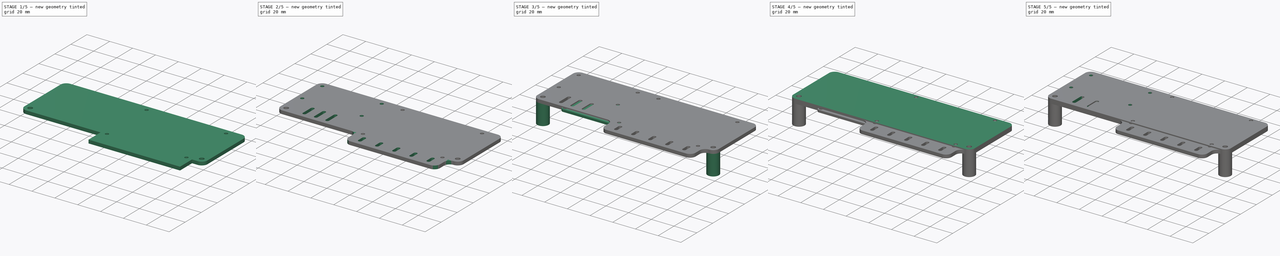
[diagram: build sequence overview — one tinted view per stage of 5, left to right]
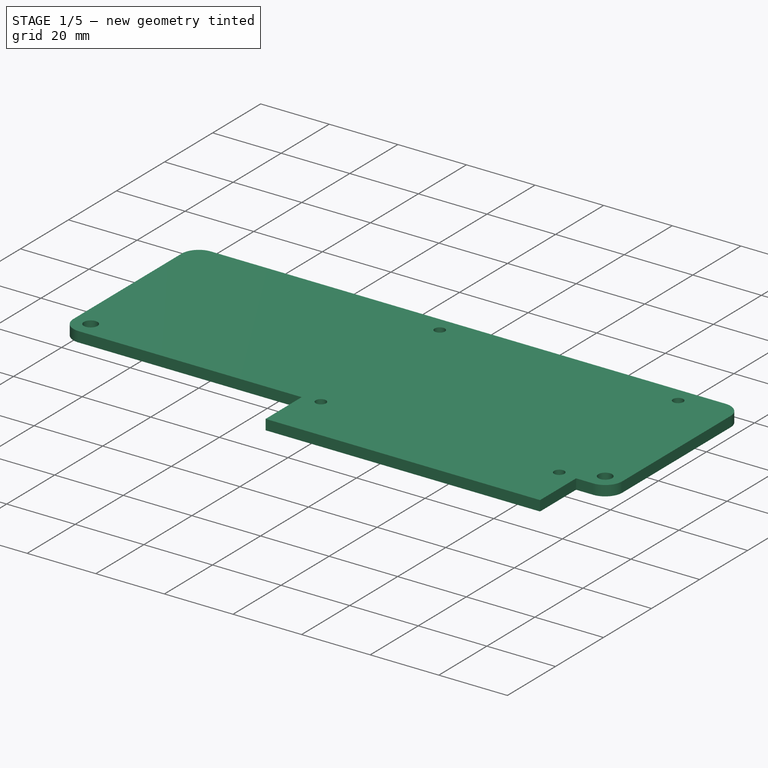
[diagram: stage 1 of 5 — iso view after this stage's code; geometry added in this stage tinted green]
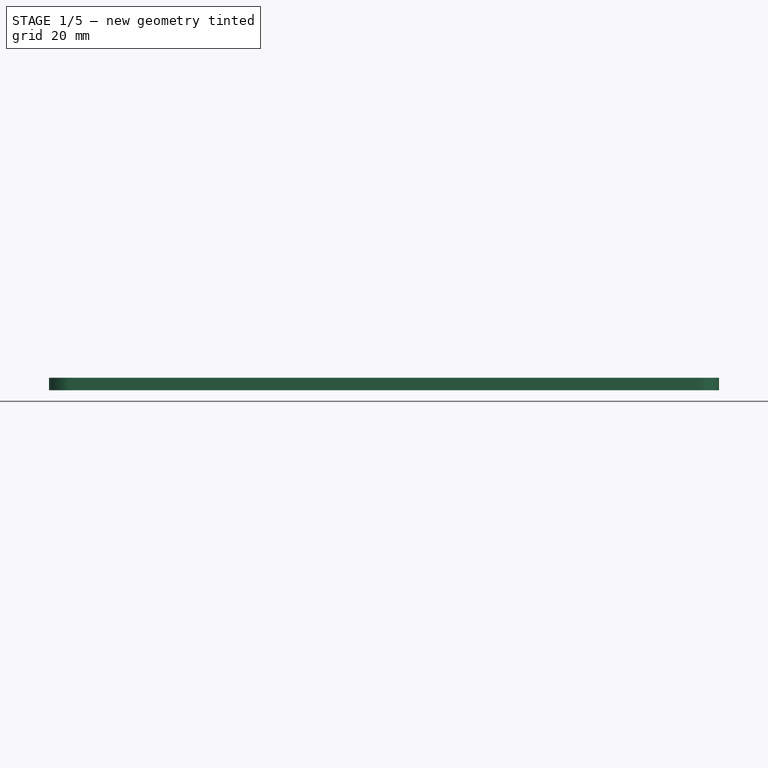
[diagram: stage 1 of 5 — front view after this stage's code; geometry added in this stage tinted green]
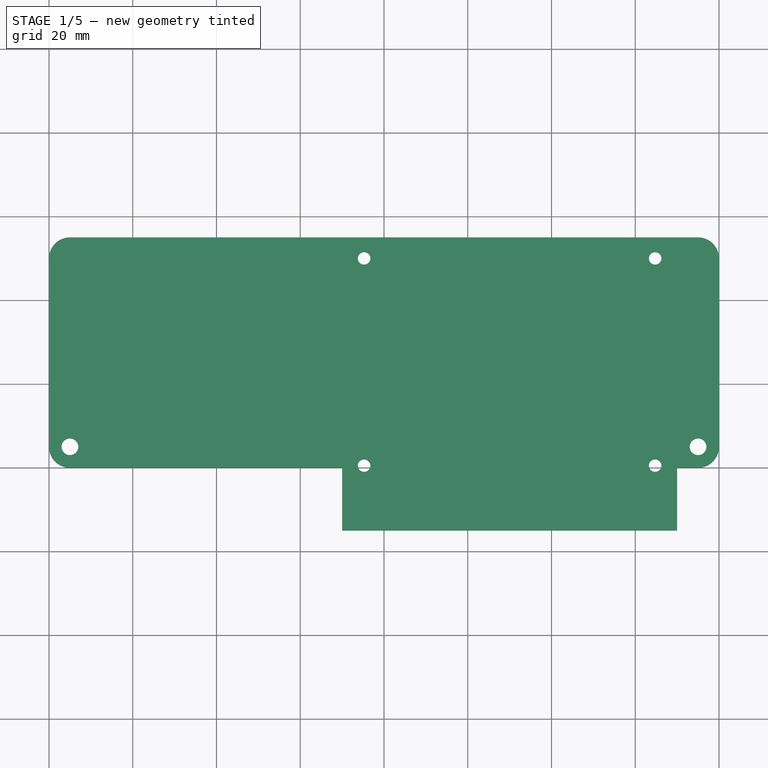
[diagram: stage 1 of 5 — top view after this stage's code; geometry added in this stage tinted green]
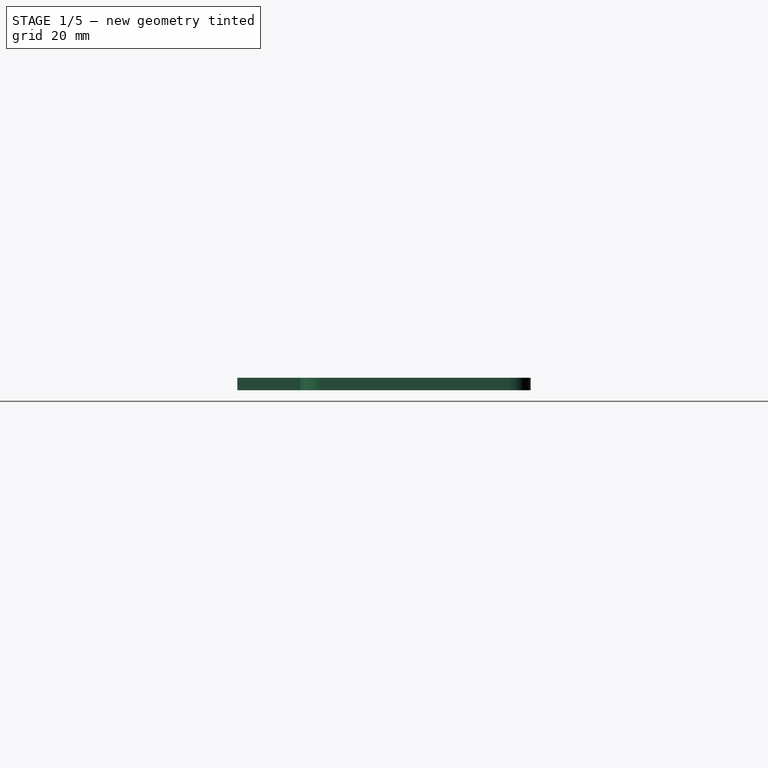
[diagram: stage 1 of 5 — right view after this stage's code; geometry added in this stage tinted green]
FCSTD DOCUMENT  (FreeCAD 0.20R29603 (Git))
Label: TorsteuerungHalter
License: All rights reserved
LicenseURL: http://en.wikipedia.org/wiki/All_rights_reserved
objects: Sketcher::SketchObject×15, PartDesign::Pad×9, PartDesign::Body×4, PartDesign::Hole×4, PartDesign::SubShapeBinder×2, PartDesign::Pocket×2, PartDesign::Fillet×1
note: 53 computed .brp shape members not serialized (recipe doc carries the construction recipe); baked Part::Feature solids carry a one-line shape summary decoded from their .brp

FEATURE [PartDesign::Body] Body  label="v1"
  Group = -> [Sketch,Pad,Binder,Sketch005,Hole,Sketch006,Pad003,Sketch007,Pad004,Binder001,Sketch009,Hole001,Sketch010,Pocket]
  Origin = -> Origin
  Tip = -> Pocket
FEATURE [Sketcher::SketchObject] Sketch012
  FullyConstrained = true
  MapMode = 5
  Support = -> [XY_Plane003]
  sketch-geometry (12):
    g0: ArcOfCircle CenterX=-75 CenterY=5 CenterZ=0 NormalX=0 NormalY=0 NormalZ=1 AngleXU=0 Radius=5 StartAngle=3.14159 EndAngle=4.71239
    g1: LineSegment StartX=-80 StartY=5 StartZ=0 EndX=-80 EndY=50 EndZ=0
    g2: ArcOfCircle CenterX=-75 CenterY=50 CenterZ=0 NormalX=0 NormalY=0 NormalZ=1 AngleXU=0 Radius=5 StartAngle=1.5708 EndAngle=3.14159
    g3: LineSegment StartX=-75 StartY=55 StartZ=0 EndX=75 EndY=55 EndZ=0
    g4: ArcOfCircle CenterX=75 CenterY=50 CenterZ=0 NormalX=0 NormalY=0 NormalZ=1 AngleXU=0 Radius=5 StartAngle=3e-16 EndAngle=1.5708
    g5: LineSegment StartX=80 StartY=50 StartZ=0 EndX=80 EndY=5 EndZ=0
    g6: ArcOfCircle CenterX=75 CenterY=5 CenterZ=0 NormalX=0 NormalY=0 NormalZ=1 AngleXU=0 Radius=5 StartAngle=4.71239 EndAngle=6.28319
    g7: LineSegment StartX=75 StartY=0 StartZ=0 EndX=-75 EndY=0 EndZ=0
    g8: GeomPoint X=-80 Y=0 Z=0
    g9: GeomPoint X=80 Y=55 Z=0
    g10: Circle CenterX=-75 CenterY=5 CenterZ=0 NormalX=0 NormalY=0 NormalZ=1 AngleXU=0 Radius=2
    g11: Circle CenterX=75 CenterY=5 CenterZ=0 NormalX=0 NormalY=0 NormalZ=1 AngleXU=0 Radius=2
  constraints (27):
    c: Tangent(g0,g1) = 1.5708
    c: Tangent(g1,g2) = 1.5708
    c: Tangent(g2,g3) = 1.5708
    c: Tangent(g3,g4) = 1.5708
    c: Tangent(g4,g5) = 1.5708
    c: Tangent(g5,g6) = 1.5708
    c: Tangent(g6,g7) = 1.5708
    c: Tangent(g7,g0) = 1.5708
    c: Horizontal(g3)
    c: Vertical(g1)
    c: Vertical(g5)
    c: Equal(g0,g2)
    c: Equal(g2,g4)
    c: Equal(g4,g6)
    c: PointOnObject(g8,g1)
    c: PointOnObject(g8,g7)
    c: PointOnObject(g9,g3)
    c: PointOnObject(g9,g5)
    c: Tangent(g7,g-1)
    c: Coincident(g10,g0)
    c: Coincident(g11,g6)
    c: Equal(g11,g10)
    c: Diameter(g10) = 4
    c: Diameter(g0) = 10
    c: DistanceX(g0,g6) = 150
    c: Symmetric(g0,g6,g-2)
    c: DistanceY(g0,g2) = 50
FEATURE [PartDesign::Pad] Pad006  label="BasePlate"
  Direction = (0,0,1)
  Length = 3
  Length2 = 10
  Profile = -> Sketch012
  ReferenceAxis = -> Sketch012 [N_Axis]
  Type = 0
FEATURE [Sketcher::SketchObject] Sketch013
  ExternalGeometry = -> [Pad006]
  FullyConstrained = true
  MapMode = 5
  Placement = pos=(0,0,0) rot=(1,0,0;1.5708rad)
  Support = -> [Pad006]
  sketch-geometry (4):
    g0: LineSegment StartX=70 StartY=0 StartZ=0 EndX=-10 EndY=0 EndZ=0
    g1: LineSegment StartX=-10 StartY=0 StartZ=0 EndX=-10 EndY=3 EndZ=0
    g2: LineSegment StartX=-10 StartY=3 StartZ=0 EndX=70 EndY=3 EndZ=0
    g3: LineSegment StartX=70 StartY=3 StartZ=0 EndX=70 EndY=0 EndZ=0
  constraints (12):
    c: Coincident(g0,g1)
    c: Coincident(g1,g2)
    c: Coincident(g2,g3)
    c: Coincident(g3,g0)
    c: Horizontal(g0)
    c: Horizontal(g2)
    c: Vertical(g1)
    c: Vertical(g3)
    c: PointOnObject(g0,g-3)
    c: PointOnObject(g1,g-4)
    c: DistanceX(g2,g-4) = 5
    c: DistanceX(g0,g0) = 80
FEATURE [PartDesign::Pad] Pad007  label="RelaisExtender"
  BaseFeature = -> Pad006
  Direction = (0,-1,2e-16)
  Length = 15
  Length2 = 10
  Profile = -> Sketch013
  ReferenceAxis = -> Sketch013 [N_Axis]
  Type = 0
FEATURE [Sketcher::SketchObject] Sketch014
  ExternalGeometry = -> [Pad007]
  FullyConstrained = true
  MapMode = 5
  Placement = pos=(0,0,3) rot=(0,0,1;0rad)
  sketch-geometry (11):
    g0: LineSegment StartX=-4.75 StartY=50 StartZ=0 EndX=64.75 EndY=50 EndZ=0
    g1: LineSegment StartX=64.75 StartY=50 StartZ=0 EndX=64.75 EndY=0.5 EndZ=0
    g2: LineSegment StartX=-4.75 StartY=0.5 StartZ=0 EndX=-4.75 EndY=50 EndZ=0
    g3: Circle CenterX=-4.75 CenterY=50 CenterZ=0 NormalX=0 NormalY=0 NormalZ=1 AngleXU=0 Radius=1.75
    g4: Circle CenterX=64.75 CenterY=50 CenterZ=0 NormalX=0 NormalY=0 NormalZ=1 AngleXU=0 Radius=1.75
    g5: Circle CenterX=64.75 CenterY=0.5 CenterZ=0 NormalX=0 NormalY=0 NormalZ=1 AngleXU=0 Radius=1.75
    g6: Circle CenterX=-4.75 CenterY=0.5 CenterZ=0 NormalX=0 NormalY=0 NormalZ=1 AngleXU=0 Radius=1.75
    g7: LineSegment StartX=-10 StartY=7e-16 StartZ=0 EndX=-4.75 EndY=0.5 EndZ=0
    g8: LineSegment StartX=70 StartY=7e-16 StartZ=0 EndX=64.75 EndY=0.5 EndZ=0
    g9: LineSegment StartX=-4.75 StartY=0.5 StartZ=0 EndX=64.75 EndY=0.5 EndZ=0
    g10: LineSegment StartX=75 StartY=50 StartZ=0 EndX=64.75 EndY=50 EndZ=0
  constraints (26):
    c: Coincident(g0,g1)
    c: Coincident(g2,g0)
    c: Horizontal(g0)
    c: Vertical(g1)
    c: Vertical(g2)
    c: DistanceX(g2,g1) = 69.5
    c: DistanceY(g2,g0) = 49.5
    c: Coincident(g3,g0)
    c: Coincident(g4,g0)
    c: Coincident(g5,g1)
    c: Equal(g6,g3)
    c: Equal(g3,g4)
    c: Equal(g4,g5)
    c: Diameter(g3) = 3.5
    c: Coincident(g6,g2)
    c: Coincident(g7,g-3)
    c: Coincident(g7,g6)
    c: Coincident(g8,g-4)
    c: Coincident(g8,g5)
    c: Equal(g7,g8)
    c: Coincident(g9,g6)
    c: Coincident(g9,g5)
    c: Horizontal(g9)
    c: Coincident(g10,g-5)
    c: Coincident(g10,g4)
    c: Horizontal(g10)
FEATURE [PartDesign::Hole] Hole002  label="RelaisMount"
  BaseFeature = -> Pad007
  CustomThreadClearance = 0
  Depth = 25
  DepthType = 0
  Diameter = 3
  DrillForDepth = false
  DrillPoint = 1
  DrillPointAngle = 118
  HoleCutCountersinkAngle = 90
  HoleCutCustomValues = false
  HoleCutDepth = 0
  HoleCutDiameter = 6.1
  HoleCutType = 0
  ModelThread = false
  Profile = -> Sketch014
  Tapered = false
  TaperedAngle = 90
  ThreadClass = 0
  ThreadDepth = 25
  ThreadDepthType = 0
  ThreadDirection = 0
  ThreadFit = 0
  ThreadSize = 0
  ThreadType = 0
  Threaded = false
  UseCustomThreadClearance = false
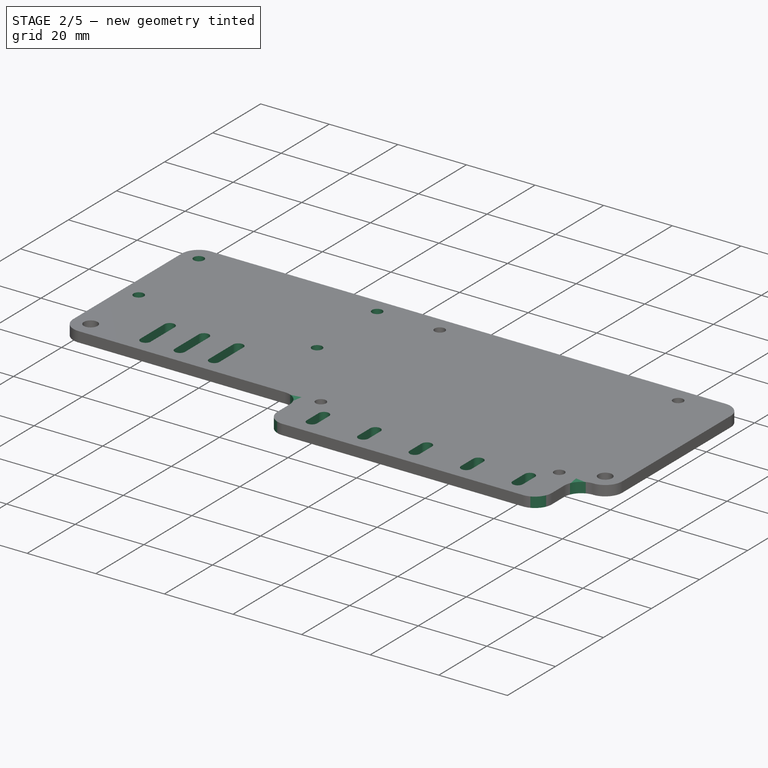
[diagram: stage 2 of 5 — iso view after this stage's code; geometry added in this stage tinted green]
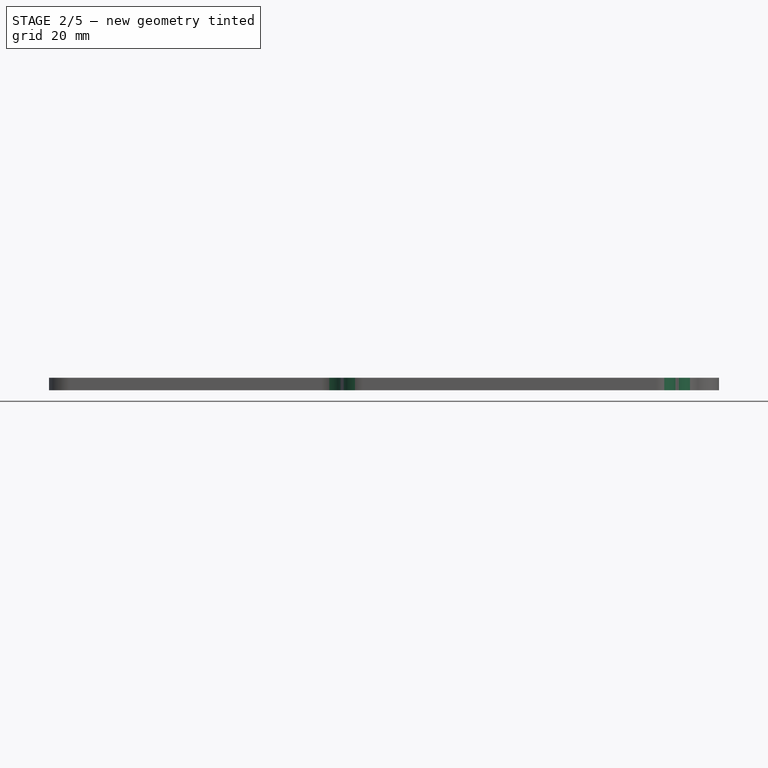
[diagram: stage 2 of 5 — front view after this stage's code; geometry added in this stage tinted green]
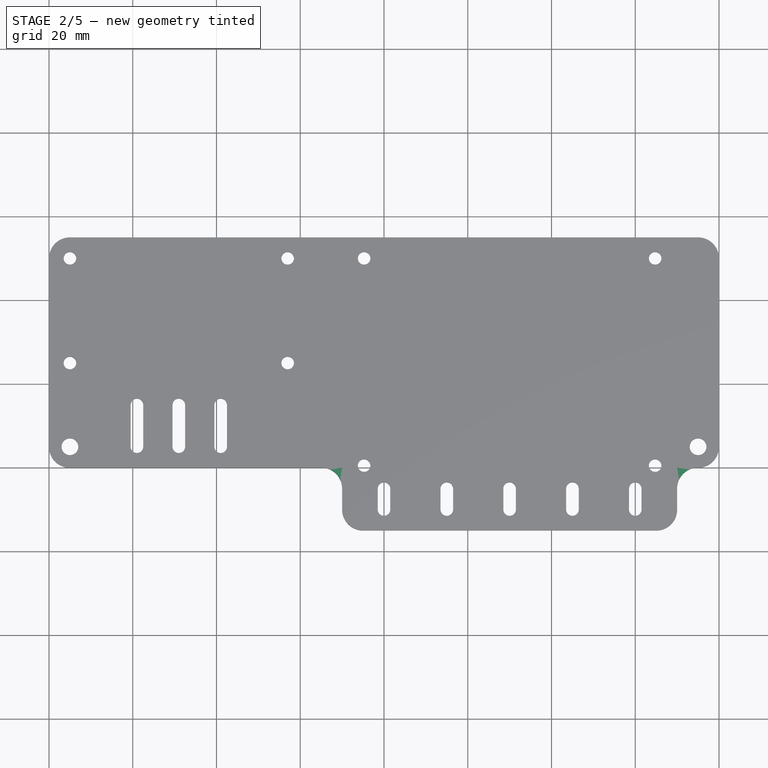
[diagram: stage 2 of 5 — top view after this stage's code; geometry added in this stage tinted green]
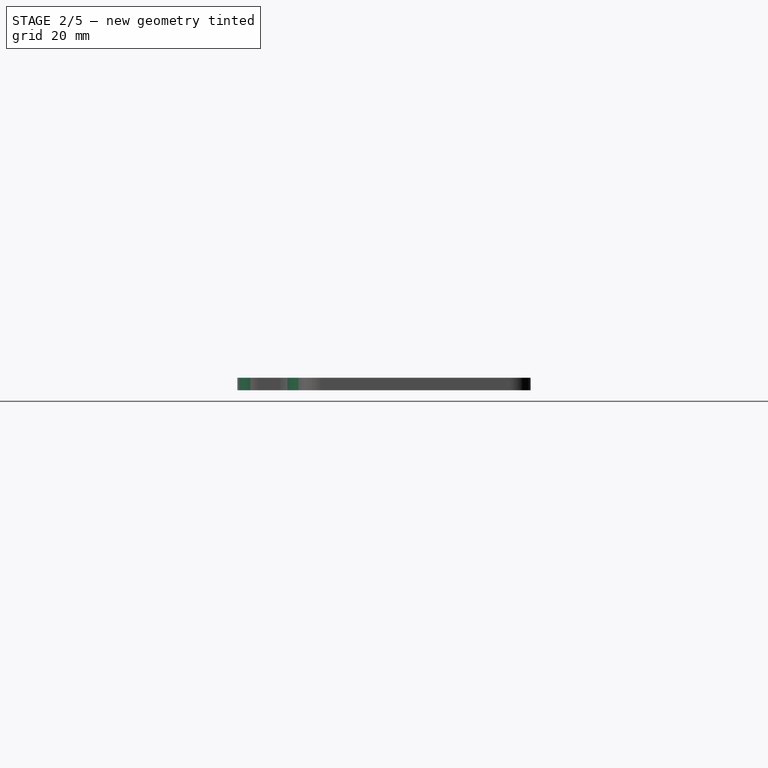
[diagram: stage 2 of 5 — right view after this stage's code; geometry added in this stage tinted green]
FEATURE [Sketcher::SketchObject] Sketch015
  ExternalGeometry = -> [Hole002]
  FullyConstrained = true
  MapMode = 5
  Placement = pos=(0,0,3) rot=(0,0,1;0rad)
  Support = -> [Hole002]
  sketch-geometry (8):
    g0: LineSegment StartX=-75 StartY=50 StartZ=0 EndX=-23 EndY=50 EndZ=0
    g1: LineSegment StartX=-23 StartY=50 StartZ=0 EndX=-23 EndY=25 EndZ=0
    g2: LineSegment StartX=-23 StartY=25 StartZ=0 EndX=-75 EndY=25 EndZ=0
    g3: LineSegment StartX=-75 StartY=25 StartZ=0 EndX=-75 EndY=50 EndZ=0
    g4: Circle CenterX=-75 CenterY=50 CenterZ=0 NormalX=0 NormalY=0 NormalZ=1 AngleXU=0 Radius=1.75
    g5: Circle CenterX=-23 CenterY=50 CenterZ=0 NormalX=0 NormalY=0 NormalZ=1 AngleXU=0 Radius=1.75
    g6: Circle CenterX=-23 CenterY=25 CenterZ=0 NormalX=0 NormalY=0 NormalZ=1 AngleXU=0 Radius=1.75
    g7: Circle CenterX=-75 CenterY=25 CenterZ=0 NormalX=0 NormalY=0 NormalZ=1 AngleXU=0 Radius=1.75
  constraints (19):
    c: Coincident(g0,g1)
    c: Coincident(g1,g2)
    c: Coincident(g2,g3)
    c: Coincident(g3,g0)
    c: Horizontal(g0)
    c: Horizontal(g2)
    c: Vertical(g1)
    c: Vertical(g3)
    c: Coincident(g0,g-3)
    c: DistanceY(g2,g0) = 25
    c: DistanceX(g0,g0) = 52
    c: Coincident(g4,g0)
    c: Coincident(g5,g0)
    c: Coincident(g6,g1)
    c: Coincident(g7,g2)
    c: Equal(g7,g4)
    c: Equal(g4,g5)
    c: Equal(g5,g6)
    c: Diameter(g4) = 3.5
FEATURE [PartDesign::Hole] Hole003  label="EspMount"
  BaseFeature = -> Hole002
  CustomThreadClearance = 0
  Depth = 25
  DepthType = 0
  Diameter = 3
  DrillForDepth = false
  DrillPoint = 1
  DrillPointAngle = 118
  HoleCutCountersinkAngle = 90
  HoleCutCustomValues = false
  HoleCutDepth = 0
  HoleCutDiameter = 6.1
  HoleCutType = 0
  ModelThread = false
  Profile = -> Sketch015
  Tapered = false
  TaperedAngle = 90
  ThreadClass = 0
  ThreadDepth = 25
  ThreadDepthType = 0
  ThreadDirection = 0
  ThreadFit = 0
  ThreadSize = 0
  ThreadType = 0
  Threaded = false
  UseCustomThreadClearance = false
FEATURE [Sketcher::SketchObject] Sketch016
  ExternalGeometry = -> [Hole003]
  FullyConstrained = true
  MapMode = 5
  Placement = pos=(0,0,3) rot=(0,0,1;0rad)
  Support = -> [Hole003]
  sketch-geometry (48):
    g0: ArcOfCircle CenterX=-59 CenterY=15 CenterZ=0 NormalX=0 NormalY=0 NormalZ=1 AngleXU=0 Radius=1.5 StartAngle=-9e-16 EndAngle=3.14159
    g1: ArcOfCircle CenterX=-59 CenterY=5 CenterZ=0 NormalX=0 NormalY=0 NormalZ=1 AngleXU=0 Radius=1.5 StartAngle=3.14159 EndAngle=6.28319
    g2: LineSegment StartX=-60.5 StartY=15 StartZ=0 EndX=-60.5 EndY=5 EndZ=0
    g3: LineSegment StartX=-57.5 StartY=5 StartZ=0 EndX=-57.5 EndY=15 EndZ=0
    g4: ArcOfCircle CenterX=-49 CenterY=15 CenterZ=0 NormalX=0 NormalY=0 NormalZ=1 AngleXU=0 Radius=1.5 StartAngle=0 EndAngle=3.14159
    g5: ArcOfCircle CenterX=-49 CenterY=5 CenterZ=0 NormalX=0 NormalY=0 NormalZ=1 AngleXU=0 Radius=1.5 StartAngle=3.14159 EndAngle=6.28319
    g6: LineSegment StartX=-50.5 StartY=15 StartZ=0 EndX=-50.5 EndY=5 EndZ=0
    g7: LineSegment StartX=-47.5 StartY=5 StartZ=0 EndX=-47.5 EndY=15 EndZ=0
    g8: ArcOfCircle CenterX=-39 CenterY=15 CenterZ=0 NormalX=0 NormalY=0 NormalZ=1 AngleXU=0 Radius=1.5 StartAngle=0 EndAngle=3.14159
    g9: ArcOfCircle CenterX=-39 CenterY=5 CenterZ=0 NormalX=0 NormalY=0 NormalZ=1 AngleXU=0 Radius=1.5 StartAngle=3.14159 EndAngle=6.28319
    g10: LineSegment StartX=-40.5 StartY=15 StartZ=0 EndX=-40.5 EndY=5 EndZ=0
    g11: LineSegment StartX=-37.5 StartY=5 StartZ=0 EndX=-37.5 EndY=15 EndZ=0
    g12: LineSegment StartX=-59 StartY=15 StartZ=0 EndX=-49 EndY=15 EndZ=0
    g13: LineSegment StartX=-49 StartY=15 StartZ=0 EndX=-39 EndY=15 EndZ=0
    g14: LineSegment StartX=-75 StartY=25 StartZ=0 EndX=-49 EndY=25 EndZ=0
    g15: LineSegment StartX=-23 StartY=25 StartZ=0 EndX=-49 EndY=25 EndZ=0
    g16: LineSegment StartX=-49 StartY=25 StartZ=0 EndX=-49 EndY=15 EndZ=0
    g17: LineSegment StartX=-4.75 StartY=0.5 StartZ=0 EndX=30 EndY=0.5 EndZ=0
    g18: LineSegment StartX=64.75 StartY=0.5 StartZ=0 EndX=30 EndY=0.5 EndZ=0
    g19: ArcOfCircle CenterX=30 CenterY=-5 CenterZ=0 NormalX=0 NormalY=0 NormalZ=1 AngleXU=0 Radius=1.5 StartAngle=0 EndAngle=3.14159
    g20: ArcOfCircle CenterX=30 CenterY=-10 CenterZ=0 NormalX=0 NormalY=0 NormalZ=1 AngleXU=0 Radius=1.5 StartAngle=3.14159 EndAngle=6.28319
    g21: LineSegment StartX=28.5 StartY=-5 StartZ=0 EndX=28.5 EndY=-10 EndZ=0
    g22: LineSegment StartX=31.5 StartY=-10 StartZ=0 EndX=31.5 EndY=-5 EndZ=0
    g23: LineSegment StartX=30 StartY=0.5 StartZ=0 EndX=30 EndY=-5 EndZ=0
    g24: ArcOfCircle CenterX=15 CenterY=-5 CenterZ=0 NormalX=0 NormalY=0 NormalZ=1 AngleXU=0 Radius=1.5 StartAngle=1e-16 EndAngle=3.14159
    g25: ArcOfCircle CenterX=15 CenterY=-10 CenterZ=0 NormalX=0 NormalY=0 NormalZ=1 AngleXU=0 Radius=1.5 StartAngle=3.14159 EndAngle=6.28319
    g26: LineSegment StartX=13.5 StartY=-5 StartZ=0 EndX=13.5 EndY=-10 EndZ=0
    g27: LineSegment StartX=16.5 StartY=-10 StartZ=0 EndX=16.5 EndY=-5 EndZ=0
    g28: ArcOfCircle CenterX=-2.4944e-11 CenterY=-5 CenterZ=0 NormalX=0 NormalY=0 NormalZ=1 AngleXU=0 Radius=1.5 StartAngle=1e-16 EndAngle=3.14159
    g29: ArcOfCircle CenterX=-2.49431e-11 CenterY=-10 CenterZ=0 NormalX=0 NormalY=0 NormalZ=1 AngleXU=0 Radius=1.5 StartAngle=3.14159 EndAngle=6.28319
    g30: LineSegment StartX=-1.5 StartY=-5 StartZ=0 EndX=-1.5 EndY=-10 EndZ=0
    g31: LineSegment StartX=1.5 StartY=-10 StartZ=0 EndX=1.5 EndY=-5 EndZ=0
    g32: ArcOfCircle CenterX=45 CenterY=-5 CenterZ=0 NormalX=0 NormalY=0 NormalZ=1 AngleXU=0 Radius=1.5 StartAngle=2e-16 EndAngle=3.14159
    g33: ArcOfCircle CenterX=45 CenterY=-10 CenterZ=0 NormalX=0 NormalY=0 NormalZ=1 AngleXU=0 Radius=1.5 StartAngle=3.14159 EndAngle=6.28319
    g34: LineSegment StartX=43.5 StartY=-5 StartZ=0 EndX=43.5 EndY=-10 EndZ=0
    g35: LineSegment StartX=46.5 StartY=-10 StartZ=0 EndX=46.5 EndY=-5 EndZ=0
    g36: ArcOfCircle CenterX=60 CenterY=-5 CenterZ=0 NormalX=0 NormalY=0 NormalZ=1 AngleXU=0 Radius=1.5 StartAngle=2e-16 EndAngle=3.14159
    g37: ArcOfCircle CenterX=60 CenterY=-10 CenterZ=0 NormalX=0 NormalY=0 NormalZ=1 AngleXU=0 Radius=1.5 StartAngle=3.14159 EndAngle=6.28319
    g38: LineSegment StartX=58.5 StartY=-5 StartZ=0 EndX=58.5 EndY=-10 EndZ=0
    g39: LineSegment StartX=61.5 StartY=-10 StartZ=0 EndX=61.5 EndY=-5 EndZ=0
    g40: LineSegment StartX=-2.4944e-11 StartY=-5 StartZ=0 EndX=7.5 EndY=-5 EndZ=0
    g41: LineSegment StartX=7.5 StartY=-5 StartZ=0 EndX=15 EndY=-5 EndZ=0
    g42: LineSegment StartX=15 StartY=-5 StartZ=0 EndX=22.5 EndY=-5 EndZ=0
    g43: LineSegment StartX=22.5 StartY=-5 StartZ=0 EndX=30 EndY=-5 EndZ=0
    g44: LineSegment StartX=30 StartY=-5 StartZ=0 EndX=37.5 EndY=-5 EndZ=0
    g45: LineSegment StartX=37.5 StartY=-5 StartZ=0 EndX=45 EndY=-5 EndZ=0
    g46: LineSegment StartX=45 StartY=-5 StartZ=0 EndX=52.5 EndY=-5 EndZ=0
    g47: LineSegment StartX=52.5 StartY=-5 StartZ=0 EndX=60 EndY=-5 EndZ=0
  constraints (118):
    c: Tangent(g0,g2) = -1.5708
    c: Tangent(g2,g1) = -1.5708
    c: Tangent(g1,g3) = -1.5708
    c: Tangent(g3,g0) = -1.5708
    c: Equal(g0,g1)
    c: Vertical(g2)
    c: Tangent(g4,g6) = -1.5708
    c: Tangent(g6,g5) = -1.5708
    c: Tangent(g5,g7) = -1.5708
    c: Tangent(g7,g4) = -1.5708
    c: Equal(g4,g5)
    c: Vertical(g6)
    c: Tangent(g8,g10) = -1.5708
    c: Tangent(g10,g9) = -1.5708
    c: Tangent(g9,g11) = -1.5708
    c: Tangent(g11,g8) = -1.5708
    c: Equal(g8,g9)
    c: Vertical(g10)
    c: Coincident(g12,g0)
    c: Coincident(g12,g4)
    c: Horizontal(g12)
    c: Coincident(g13,g4)
    c: Coincident(g13,g8)
    c: Horizontal(g13)
    c: Diameter(g0) = 3
    c: Equal(g0,g4)
    c: Equal(g4,g8)
    c: Equal(g12,g13)
    c: Equal(g2,g6)
    c: Equal(g6,g10)
    c: Coincident(g14,g-3)
    c: Horizontal(g14)
    c: Coincident(g15,g-4)
    c: Coincident(g15,g14)
    c: Equal(g14,g15)
    c: Coincident(g16,g14)
    c: Coincident(g16,g4)
    c: Vertical(g16)
    c: DistanceY(g8,g15) = 10
    c: DistanceY(g1,g0) = 10
    c: DistanceX(g1,g5) = 10
    c: Coincident(g17,g-5)
    c: Horizontal(g17)
    c: Coincident(g18,g-6)
    c: Coincident(g18,g17)
    c: Equal(g17,g18)
    c: Tangent(g19,g21) = -1.5708
    c: Tangent(g21,g20) = -1.5708
    c: Tangent(g20,g22) = -1.5708
    c: Tangent(g22,g19) = -1.5708
    c: Equal(g19,g20)
    c: Vertical(g21)
    c: Coincident(g23,g17)
    c: Coincident(g23,g19)
    c: Vertical(g23)
    c: Diameter(g19) = 3
    c: Tangent(g24,g26) = -1.5708
    c: Tangent(g26,g25) = -1.5708
    c: Tangent(g25,g27) = -1.5708
    c: Tangent(g27,g24) = -1.5708
    c: Equal(g24,g25)
    c: Vertical(g26)
    c: Tangent(g28,g30) = -1.5708
    c: Tangent(g30,g29) = -1.5708
    c: Tangent(g29,g31) = -1.5708
    c: Tangent(g31,g28) = -1.5708
    c: Equal(g28,g29)
    c: Vertical(g30)
    c: Tangent(g32,g34) = -1.5708
    c: Tangent(g34,g33) = -1.5708
    c: Tangent(g33,g35) = -1.5708
    c: Tangent(g35,g32) = -1.5708
    c: Equal(g32,g33)
    c: Vertical(g34)
    c: Tangent(g36,g38) = -1.5708
    c: Tangent(g38,g37) = -1.5708
    c: Tangent(g37,g39) = -1.5708
    c: Tangent(g39,g36) = -1.5708
    c: Equal(g36,g37)
    c: Vertical(g38)
    c: Equal(g28,g24)
    c: Equal(g24,g19)
    c: Equal(g19,g32)
    c: Equal(g32,g36)
    c: Equal(g38,g34)
    c: Equal(g34,g21)
    c: Equal(g21,g26)
    c: Equal(g26,g30)
    c: DistanceY(g-7,g29) = 5
    c: Coincident(g40,g28)
    c: Horizontal(g40)
    c: Coincident(g41,g40)
    c: Coincident(g41,g24)
    c: Horizontal(g41)
    c: Coincident(g42,g24)
    c: Horizontal(g42)
    c: Coincident(g43,g42)
    c: Coincident(g43,g19)
    c: Horizontal(g43)
    c: Coincident(g44,g19)
    c: Horizontal(g44)
    c: Coincident(g45,g44)
    c: Coincident(g45,g32)
    c: Horizontal(g45)
    c: Coincident(g46,g32)
    c: Horizontal(g46)
    c: Coincident(g47,g46)
    c: Coincident(g47,g36)
    c: Horizontal(g47)
    c: Equal(g40,g41)
    c: Equal(g41,g42)
    c: Equal(g42,g43)
    c: Equal(g43,g44)
    c: Equal(g44,g45)
    c: Equal(g45,g46)
    c: Equal(g46,g47)
    c: DistanceX(g40,g42) = 15
    c: DistanceY(g29,g28) = 5
FEATURE [PartDesign::Pocket] Pocket001  label="Kabelbinder"
  BaseFeature = -> Hole003
  Direction = (0,0,-1)
  Length = 5
  Length2 = 5
  Profile = -> Sketch016
  ReferenceAxis = -> Sketch016 [N_Axis]
  Type = 0
FEATURE [PartDesign::Fillet] Fillet  label="Abrundung"
  Base = -> Pocket001 [Edge10,Edge80,Edge111,Edge156]
  BaseFeature = -> Pocket001
  Radius = 4.99
  SupportTransform = false
  UseAllEdges = false
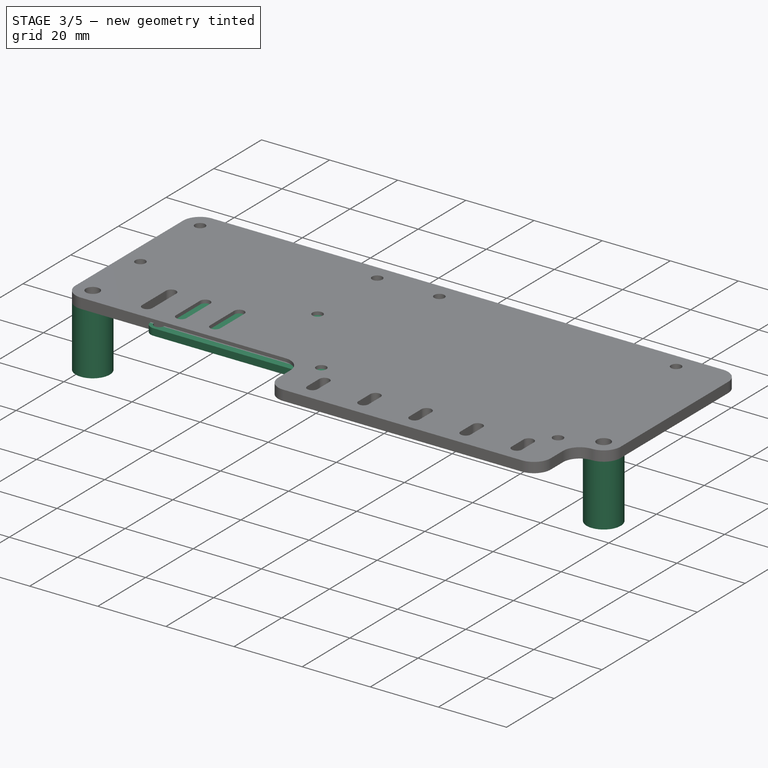
[diagram: stage 3 of 5 — iso view after this stage's code; geometry added in this stage tinted green]
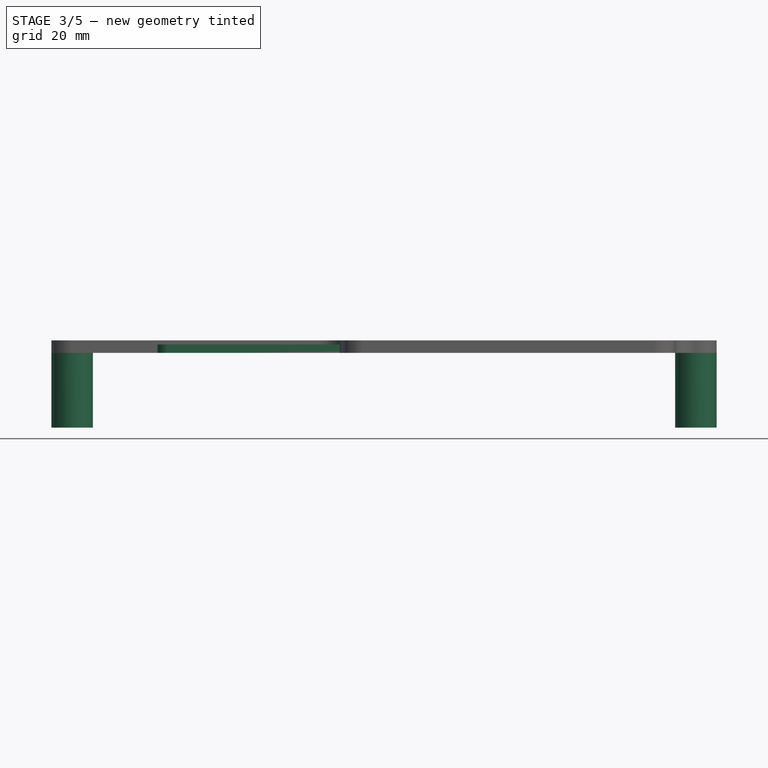
[diagram: stage 3 of 5 — front view after this stage's code; geometry added in this stage tinted green]
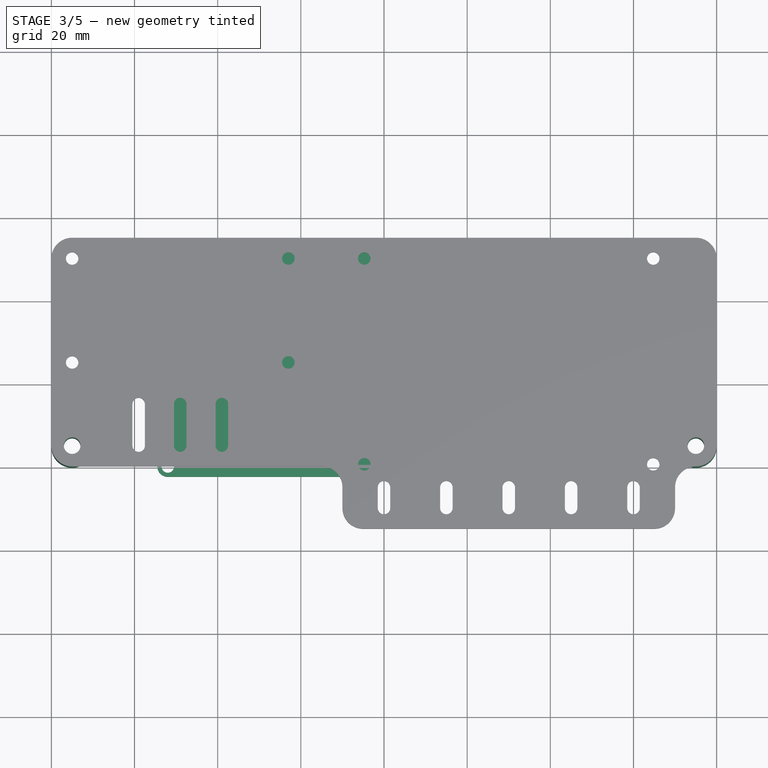
[diagram: stage 3 of 5 — top view after this stage's code; geometry added in this stage tinted green]
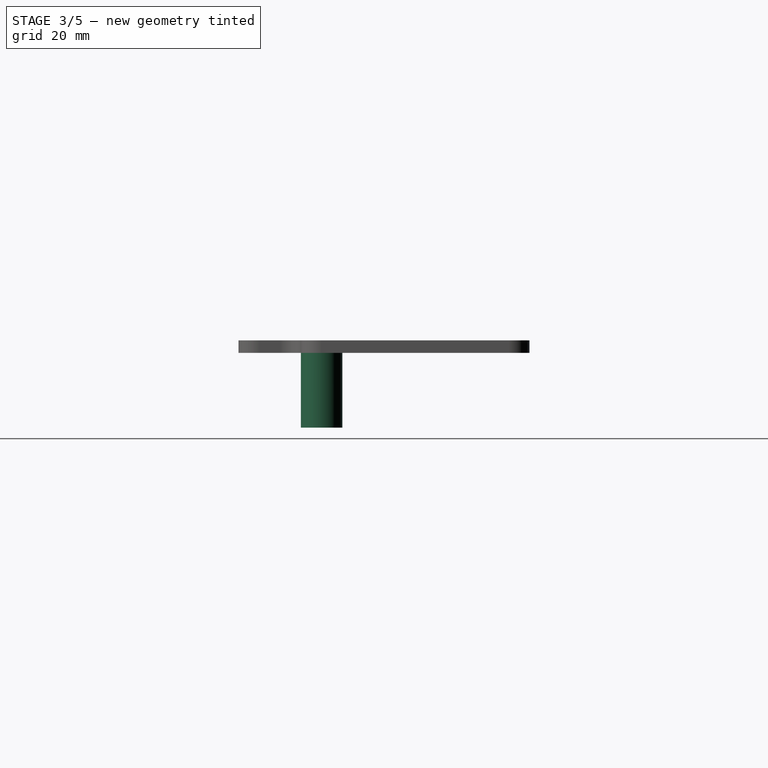
[diagram: stage 3 of 5 — right view after this stage's code; geometry added in this stage tinted green]
FEATURE [Sketcher::SketchObject] Sketch002
  FullyConstrained = true
  MapMode = 5
  Support = -> [XY_Plane001]
  sketch-geometry (18):
    g0: LineSegment StartX=-34.75 StartY=0 StartZ=0 EndX=34.75 EndY=0 EndZ=0
    g1: LineSegment StartX=34.75 StartY=0 StartZ=0 EndX=34.75 EndY=49.5 EndZ=0
    g2: LineSegment StartX=34.75 StartY=49.5 StartZ=0 EndX=-34.75 EndY=49.5 EndZ=0
    g3: LineSegment StartX=-34.75 StartY=49.5 StartZ=0 EndX=-34.75 EndY=0 EndZ=0
    g4: Circle CenterX=-34.75 CenterY=49.5 CenterZ=0 NormalX=0 NormalY=0 NormalZ=1 AngleXU=0 Radius=1.5
    g5: Circle CenterX=34.75 CenterY=49.5 CenterZ=0 NormalX=0 NormalY=0 NormalZ=1 AngleXU=0 Radius=1.5
    g6: Circle CenterX=34.75 CenterY=0 CenterZ=0 NormalX=0 NormalY=0 NormalZ=1 AngleXU=0 Radius=1.5
    g7: Circle CenterX=-34.75 CenterY=0 CenterZ=0 NormalX=0 NormalY=0 NormalZ=1 AngleXU=0 Radius=1.5
    g8: ArcOfCircle CenterX=-34.75 CenterY=0 CenterZ=0 NormalX=0 NormalY=0 NormalZ=1 AngleXU=0 Radius=2.5 StartAngle=3.14159 EndAngle=4.71239
    g9: LineSegment StartX=-37.25 StartY=-8e-16 StartZ=0 EndX=-37.25 EndY=49.5 EndZ=0
    g10: ArcOfCircle CenterX=-34.75 CenterY=49.5 CenterZ=0 NormalX=0 NormalY=0 NormalZ=1 AngleXU=0 Radius=2.5 StartAngle=1.5708 EndAngle=3.14159
    g11: LineSegment StartX=-34.75 StartY=52 StartZ=0 EndX=34.75 EndY=52 EndZ=0
    g12: ArcOfCircle CenterX=34.75 CenterY=49.5 CenterZ=0 NormalX=0 NormalY=0 NormalZ=1 AngleXU=0 Radius=2.5 StartAngle=1.1e-15 EndAngle=1.5708
    g13: LineSegment StartX=37.25 StartY=49.5 StartZ=0 EndX=37.25 EndY=0 EndZ=0
    g14: ArcOfCircle CenterX=34.75 CenterY=1e-16 CenterZ=0 NormalX=0 NormalY=0 NormalZ=1 AngleXU=0 Radius=2.5 StartAngle=4.71239 EndAngle=6.28319
    g15: LineSegment StartX=34.75 StartY=-2.5 StartZ=0 EndX=-34.75 EndY=-2.5 EndZ=0
    g16: GeomPoint X=-37.25 Y=-2.5 Z=0
    g17: GeomPoint X=37.25 Y=52 Z=0
  constraints (41):
    c: Coincident(g0,g1)
    c: Coincident(g1,g2)
    c: Coincident(g2,g3)
    c: Coincident(g3,g0)
    c: Horizontal(g2)
    c: Vertical(g1)
    c: Vertical(g3)
    c: PointOnObject(g0,g-1)
    c: Symmetric(g0,g0,g-2)
    c: DistanceX(g0,g0) = 69.5
    c: DistanceY(g0,g2) = 49.5
    c: Coincident(g4,g2)
    c: Coincident(g5,g1)
    c: Coincident(g6,g0)
    c: Coincident(g7,g0)
    c: Equal(g4,g5)
    c: Equal(g5,g6)
    c: Equal(g6,g7)
    c: Diameter(g4) = 3
    c: Tangent(g8,g9) = 1.5708
    c: Tangent(g9,g10) = 1.5708
    c: Tangent(g10,g11) = 1.5708
    c: Tangent(g11,g12) = 1.5708
    c: Tangent(g12,g13) = 1.5708
    c: Tangent(g13,g14) = 1.5708
    c: Tangent(g14,g15) = 1.5708
    c: Tangent(g15,g8) = 1.5708
    c: Horizontal(g11)
    c: Horizontal(g15)
    c: Vertical(g9)
    c: Vertical(g13)
    c: Equal(g8,g10)
    c: Equal(g10,g12)
    c: Equal(g12,g14)
    c: PointOnObject(g16,g9)
    c: PointOnObject(g16,g15)
    c: PointOnObject(g17,g11)
    c: PointOnObject(g17,g13)
    c: Coincident(g8,g7)
    c: Coincident(g5,g12)
    c: Diameter(g10) = 5
FEATURE [PartDesign::Pad] Pad002  label="RelaisPlate"
  Direction = (0,0,1)
  Length = 1
  Length2 = 10
  Profile = -> Sketch002
  ReferenceAxis = -> Sketch002 [N_Axis]
  Type = 0
FEATURE [Sketcher::SketchObject] Sketch008
  FullyConstrained = true
  MapMode = 5
  Support = -> [XY_Plane002]
  sketch-geometry (18):
    g0: LineSegment StartX=-52 StartY=25 StartZ=0 EndX=0 EndY=25 EndZ=0
    g1: LineSegment StartX=0 StartY=25 StartZ=0 EndX=0 EndY=0 EndZ=0
    g2: LineSegment StartX=0 StartY=0 StartZ=0 EndX=-52 EndY=0 EndZ=0
    g3: LineSegment StartX=-52 StartY=0 StartZ=0 EndX=-52 EndY=25 EndZ=0
    g4: Circle CenterX=-52 CenterY=25 CenterZ=0 NormalX=0 NormalY=0 NormalZ=1 AngleXU=0 Radius=1.5
    g5: Circle CenterX=0 CenterY=25 CenterZ=0 NormalX=0 NormalY=0 NormalZ=1 AngleXU=0 Radius=1.5
    g6: Circle CenterX=0 CenterY=0 CenterZ=0 NormalX=0 NormalY=0 NormalZ=1 AngleXU=0 Radius=1.5
    g7: Circle CenterX=-52 CenterY=0 CenterZ=0 NormalX=0 NormalY=0 NormalZ=1 AngleXU=0 Radius=1.5
    g8: ArcOfCircle CenterX=0 CenterY=0 CenterZ=0 NormalX=0 NormalY=0 NormalZ=1 AngleXU=0 Radius=2.5 StartAngle=4.71239 EndAngle=6.28319
    g9: LineSegment StartX=-5e-16 StartY=-2.5 StartZ=0 EndX=-52 EndY=-2.5 EndZ=0
    g10: ArcOfCircle CenterX=-52 CenterY=-1e-16 CenterZ=0 NormalX=0 NormalY=0 NormalZ=1 AngleXU=0 Radius=2.5 StartAngle=3.14159 EndAngle=4.71239
    g11: LineSegment StartX=-54.5 StartY=-9e-16 StartZ=0 EndX=-54.5 EndY=25 EndZ=0
    g12: ArcOfCircle CenterX=-52 CenterY=25 CenterZ=0 NormalX=0 NormalY=0 NormalZ=1 AngleXU=0 Radius=2.5 StartAngle=1.5708 EndAngle=3.14159
    g13: LineSegment StartX=-52 StartY=27.5 StartZ=0 EndX=0 EndY=27.5 EndZ=0
    g14: ArcOfCircle CenterX=1e-16 CenterY=25 CenterZ=0 NormalX=0 NormalY=0 NormalZ=1 AngleXU=0 Radius=2.5 StartAngle=4e-16 EndAngle=1.5708
    g15: LineSegment StartX=2.5 StartY=25 StartZ=0 EndX=2.5 EndY=0 EndZ=0
    g16: GeomPoint X=2.5 Y=-2.5 Z=0
    g17: GeomPoint X=-54.5 Y=27.5 Z=0
  constraints (41):
    c: Coincident(g0,g1)
    c: Coincident(g1,g2)
    c: Coincident(g2,g3)
    c: Coincident(g3,g0)
    c: Horizontal(g0)
    c: Horizontal(g2)
    c: Vertical(g1)
    c: Vertical(g3)
    c: DistanceX(g0,g0) = 52
    c: DistanceY(g2,g0) = 25
    c: Coincident(g4,g0)
    c: Coincident(g5,g0)
    c: Coincident(g6,g1)
    c: Coincident(g7,g2)
    c: Equal(g7,g4)
    c: Equal(g4,g5)
    c: Equal(g5,g6)
    c: Diameter(g4) = 3
    c: Coincident(g6,g-1)
    c: Tangent(g8,g9) = 1.5708
    c: Tangent(g9,g10) = 1.5708
    c: Tangent(g10,g11) = 1.5708
    c: Tangent(g11,g12) = 1.5708
    c: Tangent(g12,g13) = 1.5708
    c: Tangent(g13,g14) = 1.5708
    c: Tangent(g14,g15) = 1.5708
    c: Tangent(g15,g8) = 1.5708
    c: Horizontal(g9)
    c: Horizontal(g13)
    c: Vertical(g11)
    c: Vertical(g15)
    c: Equal(g8,g10)
    c: Equal(g10,g12)
    c: Equal(g12,g14)
    c: PointOnObject(g16,g9)
    c: PointOnObject(g16,g15)
    c: PointOnObject(g17,g11)
    c: PointOnObject(g17,g13)
    c: Coincident(g8,g6)
    c: Coincident(g12,g4)
    c: Diameter(g12) = 5
FEATURE [PartDesign::Pad] Pad005  label="EspBoard"
  Direction = (0,0,1)
  Length = 2
  Length2 = 10
  Profile = -> Sketch008
  ReferenceAxis = -> Sketch008 [N_Axis]
  Type = 0
FEATURE [Sketcher::SketchObject] Sketch017
  ExternalGeometry = -> [Fillet]
  FullyConstrained = true
  MapMode = 5
  Placement = pos=(0,0,0) rot=(1,0,0;3.14159rad)
  Support = -> [Fillet]
  sketch-geometry (4):
    g0: Circle CenterX=-75 CenterY=-5 CenterZ=0 NormalX=0 NormalY=0 NormalZ=1 AngleXU=0 Radius=5
    g1: Circle CenterX=-75 CenterY=-5 CenterZ=0 NormalX=0 NormalY=0 NormalZ=1 AngleXU=0 Radius=2
    g2: Circle CenterX=75 CenterY=-5 CenterZ=0 NormalX=0 NormalY=0 NormalZ=1 AngleXU=0 Radius=5
    g3: Circle CenterX=75 CenterY=-5 CenterZ=0 NormalX=0 NormalY=0 NormalZ=1 AngleXU=0 Radius=2
  constraints (8):
    c: Coincident(g0,g-4)
    c: Coincident(g1,g0)
    c: Equal(g1,g-4)
    c: Equal(g-3,g0)
    c: Coincident(g2,g-6)
    c: Coincident(g3,g2)
    c: Equal(g3,g-5)
    c: Equal(g2,g-6)
FEATURE [PartDesign::Pad] Pad008  label="HalterFuß"
  BaseFeature = -> Fillet
  Direction = (0,0,-1)
  Length = 15
  Length2 = 10
  Profile = -> Sketch017
  ReferenceAxis = -> Sketch017 [N_Axis]
  Type = 0
FEATURE [Sketcher::SketchObject] Sketch018
  ExternalGeometry = -> [Pad008]
  FullyConstrained = true
  MapMode = 5
  Placement = pos=(0,0,-15) rot=(1,0,0;3.14159rad)
  Support = -> [Pad008]
  sketch-geometry (4):
    g0: Circle CenterX=-75 CenterY=-5 CenterZ=0 NormalX=0 NormalY=0 NormalZ=1 AngleXU=0 Radius=5
    g1: Circle CenterX=-75 CenterY=-5 CenterZ=0 NormalX=0 NormalY=0 NormalZ=1 AngleXU=0 Radius=4
    g2: Circle CenterX=75 CenterY=-5 CenterZ=0 NormalX=0 NormalY=0 NormalZ=1 AngleXU=0 Radius=5
    g3: Circle CenterX=75 CenterY=-5 CenterZ=0 NormalX=0 NormalY=0 NormalZ=1 AngleXU=0 Radius=4
  constraints (8):
    c: Coincident(g0,g-3)
    c: Coincident(g1,g0)
    c: Equal(g0,g-3)
    c: Diameter(g1) = 8
    c: Coincident(g2,g-4)
    c: Coincident(g3,g2)
    c: Equal(g2,g-4)
    c: Equal(g1,g3)
FEATURE [PartDesign::Pad] Pad009  label="AlignmentRingFuß"
  BaseFeature = -> Pad008
  Direction = (0,0,-1)
  Length = 3
  Length2 = 10
  Profile = -> Sketch018
  ReferenceAxis = -> Sketch018 [N_Axis]
  Type = 0
FEATURE [PartDesign::Body] Body003  label="v2"
  Group = -> [Sketch012,Pad006,Sketch013,Pad007,Sketch014,Hole002,Sketch015,Hole003,Sketch016,Pocket001,Fillet,Sketch017,Pad008,Sketch018,Pad009]
  Origin = -> Origin003
  Tip = -> Pad009
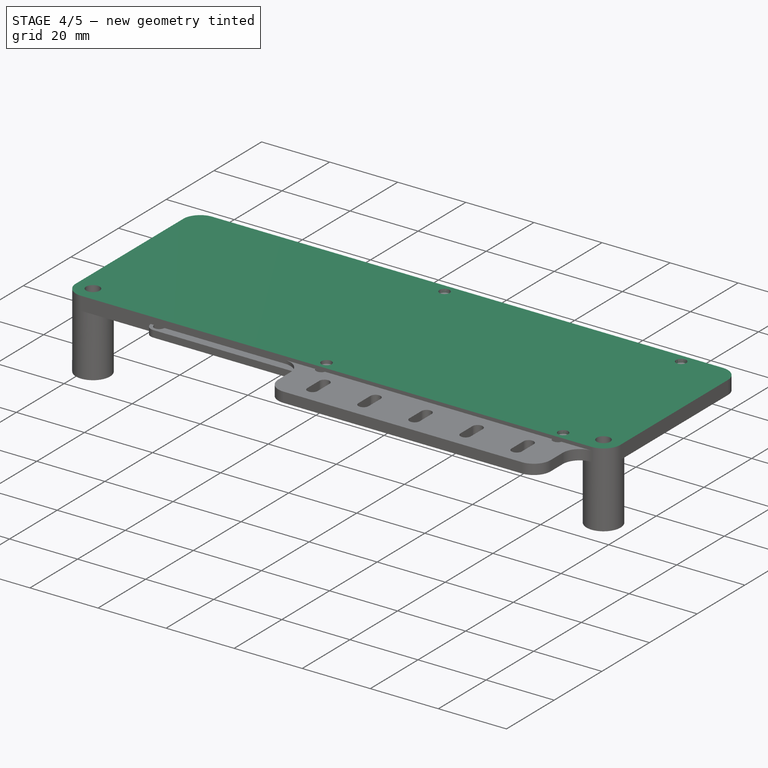
[diagram: stage 4 of 5 — iso view after this stage's code; geometry added in this stage tinted green]
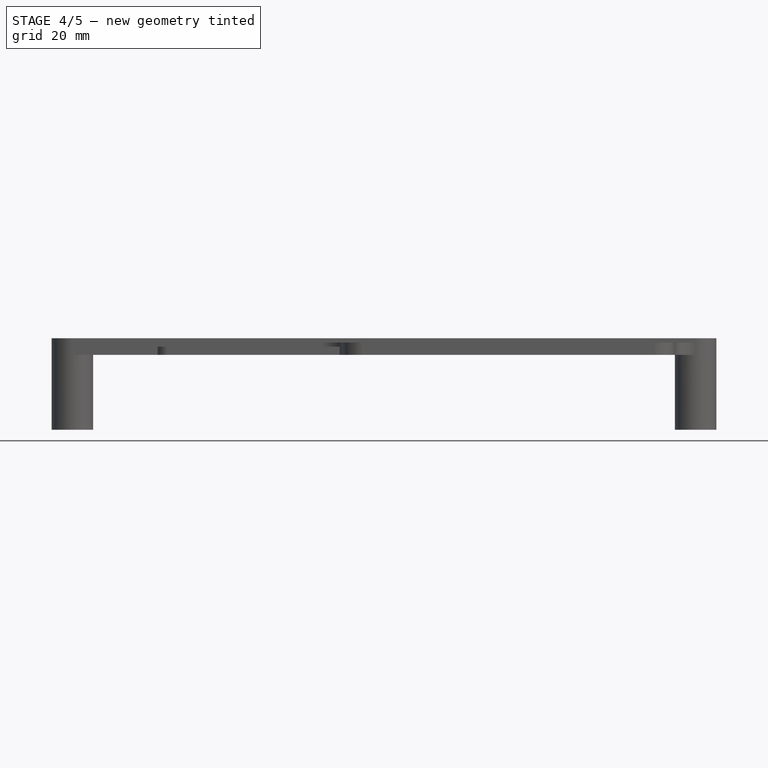
[diagram: stage 4 of 5 — front view after this stage's code; geometry added in this stage tinted green]
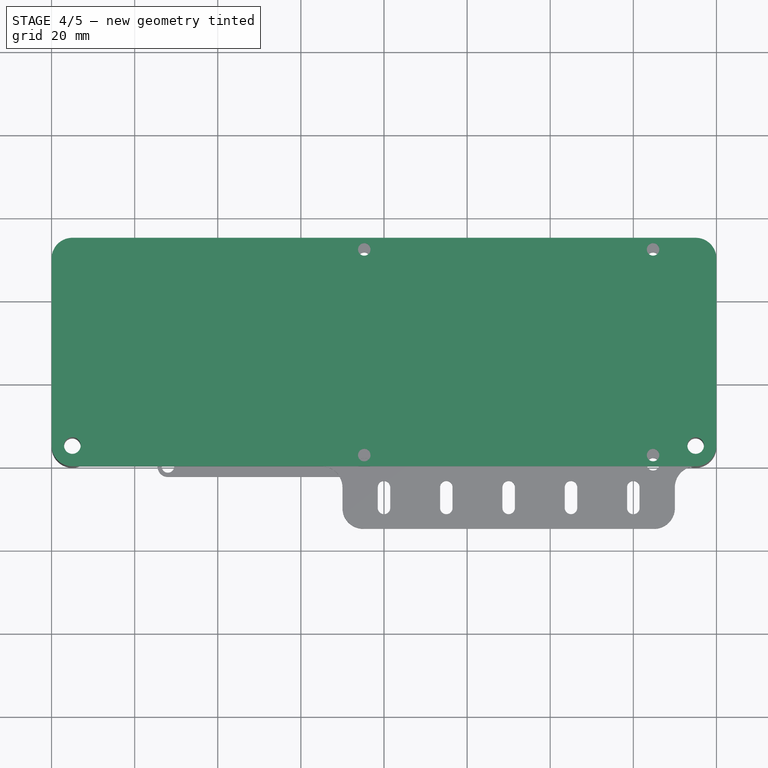
[diagram: stage 4 of 5 — top view after this stage's code; geometry added in this stage tinted green]
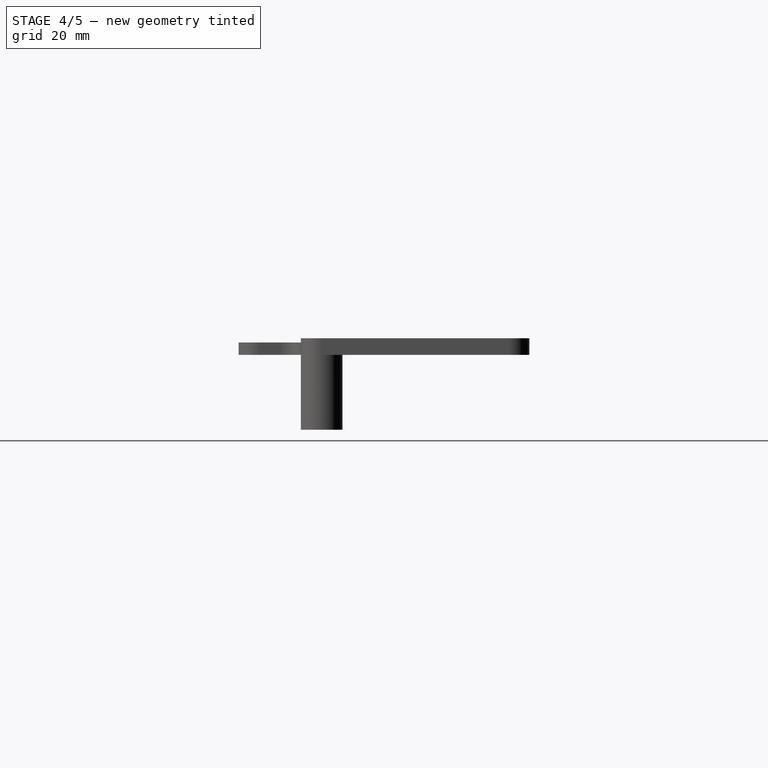
[diagram: stage 4 of 5 — right view after this stage's code; geometry added in this stage tinted green]
FEATURE [PartDesign::Body] Body001  label="relais"
  Group = -> [Sketch002,Pad002]
  Origin = -> Origin001
  Placement = pos=(30,2.7,6) rot=(0,0,1;0rad)
  Tip = -> Pad002
FEATURE [Sketcher::SketchObject] Sketch
  FullyConstrained = true
  MapMode = 5
  Support = -> [XY_Plane]
  sketch-geometry (12):
    g0: ArcOfCircle CenterX=-75 CenterY=5 CenterZ=0 NormalX=0 NormalY=0 NormalZ=1 AngleXU=0 Radius=5 StartAngle=3.14159 EndAngle=4.71239
    g1: LineSegment StartX=-80 StartY=5 StartZ=0 EndX=-80 EndY=50 EndZ=0
    g2: ArcOfCircle CenterX=-75 CenterY=50 CenterZ=0 NormalX=0 NormalY=0 NormalZ=1 AngleXU=0 Radius=5 StartAngle=1.5708 EndAngle=3.14159
    g3: LineSegment StartX=-75 StartY=55 StartZ=0 EndX=75 EndY=55 EndZ=0
    g4: ArcOfCircle CenterX=75 CenterY=50 CenterZ=0 NormalX=0 NormalY=0 NormalZ=1 AngleXU=0 Radius=5 StartAngle=1.4688e-12 EndAngle=1.5708
    g5: LineSegment StartX=80 StartY=50 StartZ=0 EndX=80 EndY=5 EndZ=0
    g6: ArcOfCircle CenterX=75 CenterY=5 CenterZ=0 NormalX=0 NormalY=0 NormalZ=1 AngleXU=0 Radius=5 StartAngle=4.71239 EndAngle=6.28319
    g7: LineSegment StartX=75 StartY=0 StartZ=0 EndX=-75 EndY=0 EndZ=0
    g8: GeomPoint X=-80 Y=0 Z=0
    g9: GeomPoint X=80 Y=55 Z=0
    g10: Circle CenterX=-75 CenterY=5 CenterZ=0 NormalX=0 NormalY=0 NormalZ=1 AngleXU=0 Radius=2
    g11: Circle CenterX=75 CenterY=5 CenterZ=0 NormalX=0 NormalY=0 NormalZ=1 AngleXU=0 Radius=2
  constraints (27):
    c: Tangent(g0,g1) = 1.5708
    c: Tangent(g1,g2) = 1.5708
    c: Tangent(g2,g3) = 1.5708
    c: Tangent(g3,g4) = 1.5708
    c: Tangent(g4,g5) = 1.5708
    c: Tangent(g5,g6) = 1.5708
    c: Tangent(g6,g7) = 1.5708
    c: Tangent(g7,g0) = 1.5708
    c: Horizontal(g3)
    c: Vertical(g1)
    c: Vertical(g5)
    c: Equal(g0,g2)
    c: Equal(g2,g4)
    c: Equal(g4,g6)
    c: PointOnObject(g8,g1)
    c: PointOnObject(g8,g7)
    c: PointOnObject(g9,g3)
    c: PointOnObject(g9,g5)
    c: PointOnObject(g-1,g7)
    c: Diameter(g2) = 10
    c: Coincident(g10,g0)
    c: Coincident(g11,g6)
    c: Equal(g10,g11)
    c: Diameter(g10) = 4
    c: DistanceX(g0,g6) = 150
    c: Symmetric(g0,g6,g-2)
    c: DistanceY(g0,g2) = 50
FEATURE [PartDesign::Pad] Pad  label="Base"
  Direction = (0,0,1)
  Length = 4
  Length2 = 10
  Profile = -> Sketch
  ReferenceAxis = -> Sketch [N_Axis]
  Type = 0
FEATURE [PartDesign::SubShapeBinder] Binder  label="RelaisBinder"
  BindCopyOnChange = 0
  BindMode = 0
  ClaimChildren = false
  Context = -> Body [Binder.]
  Fuse = false
  MakeFace = true
  OffsetFill = false
  OffsetIntersection = false
  OffsetJoinType = 0
  OffsetOpenResult = false
  PartialLoad = false
  Relative = true
  Support = -> [Body001[Pad002.]]
  _Version = 2
FEATURE [Sketcher::SketchObject] Sketch005  label="RelaisMountSketch"
  ExternalGeometry = -> [Binder]
  FullyConstrained = true
  MapMode = 5
  Placement = pos=(0,0,4) rot=(0,0,1;0rad)
  Support = -> [Pad]
  sketch-geometry (4):
    g0: Circle CenterX=-4.75 CenterY=52.2 CenterZ=0 NormalX=0 NormalY=0 NormalZ=1 AngleXU=0 Radius=1.5
    g1: Circle CenterX=64.75 CenterY=52.2 CenterZ=0 NormalX=0 NormalY=0 NormalZ=1 AngleXU=0 Radius=1.5
    g2: Circle CenterX=64.75 CenterY=2.7 CenterZ=0 NormalX=0 NormalY=0 NormalZ=1 AngleXU=0 Radius=1.5
    g3: Circle CenterX=-4.75 CenterY=2.7 CenterZ=0 NormalX=0 NormalY=0 NormalZ=1 AngleXU=0 Radius=1.5
  constraints (8):
    c: Coincident(g0,g-3)
    c: Coincident(g1,g-4)
    c: Coincident(g2,g-5)
    c: Coincident(g3,g-6)
    c: Equal(g0,g3)
    c: Equal(g3,g2)
    c: Equal(g2,g1)
    c: Equal(g0,g-3)
FEATURE [PartDesign::Hole] Hole  label="RelaisLöcher"
  BaseFeature = -> Pad
  CustomThreadClearance = 0
  Depth = 25
  DepthType = 0
  Diameter = 3
  DrillForDepth = false
  DrillPoint = 1
  DrillPointAngle = 118
  HoleCutCountersinkAngle = 90
  HoleCutCustomValues = false
  HoleCutDepth = 0
  HoleCutDiameter = 6.1
  HoleCutType = 0
  ModelThread = false
  Profile = -> Sketch005
  Tapered = false
  TaperedAngle = 90
  ThreadClass = 0
  ThreadDepth = 25
  ThreadDepthType = 0
  ThreadDirection = 0
  ThreadFit = 0
  ThreadSize = 0
  ThreadType = 0
  Threaded = false
  UseCustomThreadClearance = false
FEATURE [Sketcher::SketchObject] Sketch006
  ExternalGeometry = -> [Hole]
  FullyConstrained = true
  MapMode = 5
  Placement = pos=(0,0,0) rot=(1,0,0;3.14159rad)
  Support = -> [Hole]
  sketch-geometry (4):
    g0: Circle CenterX=-75 CenterY=-5 CenterZ=0 NormalX=0 NormalY=0 NormalZ=1 AngleXU=0 Radius=5
    g1: Circle CenterX=75 CenterY=-5 CenterZ=0 NormalX=0 NormalY=0 NormalZ=1 AngleXU=0 Radius=5
    g2: Circle CenterX=-75 CenterY=-5 CenterZ=0 NormalX=0 NormalY=0 NormalZ=1 AngleXU=0 Radius=2
    g3: Circle CenterX=75 CenterY=-5 CenterZ=0 NormalX=0 NormalY=0 NormalZ=1 AngleXU=0 Radius=2
  constraints (8):
    c: Coincident(g0,g-3)
    c: Coincident(g1,g-6)
    c: Equal(g0,g-5)
    c: Equal(g1,g-6)
    c: Coincident(g2,g0)
    c: Coincident(g3,g1)
    c: Equal(g2,g-3)
    c: Equal(g3,g-4)
FEATURE [PartDesign::Pad] Pad003  label="Stützen"
  BaseFeature = -> Hole
  Direction = (0,0,-1)
  Length = 10
  Length2 = 10
  Profile = -> Sketch006
  ReferenceAxis = -> Sketch006 [N_Axis]
  Type = 0
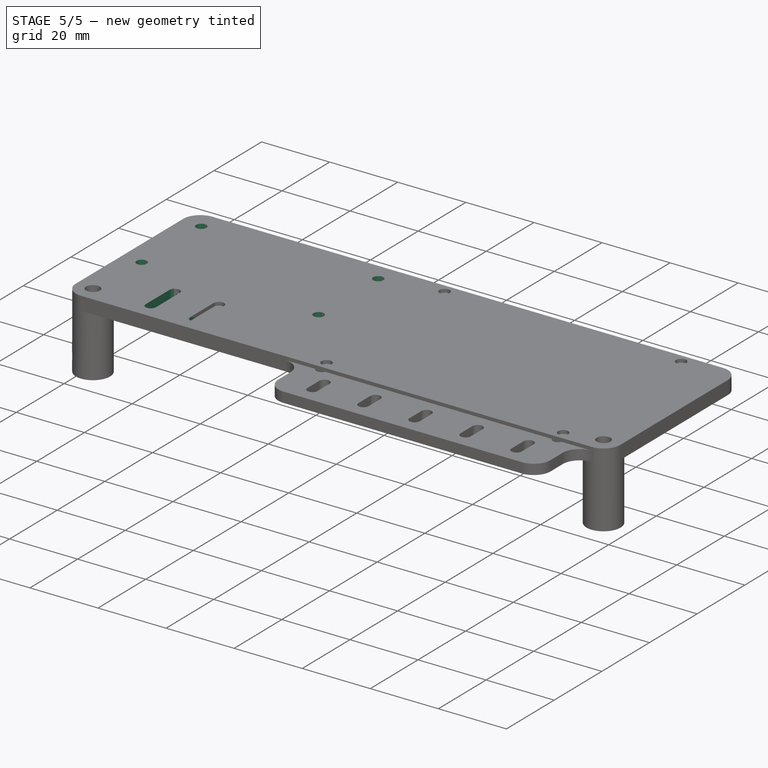
[diagram: stage 5 of 5 — iso view after this stage's code; geometry added in this stage tinted green]
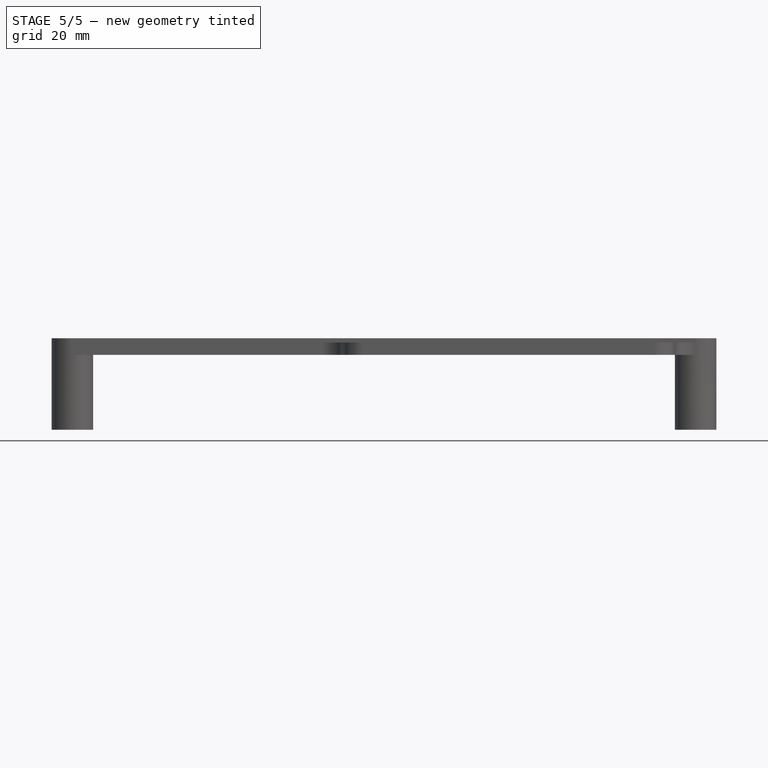
[diagram: stage 5 of 5 — front view after this stage's code; geometry added in this stage tinted green]
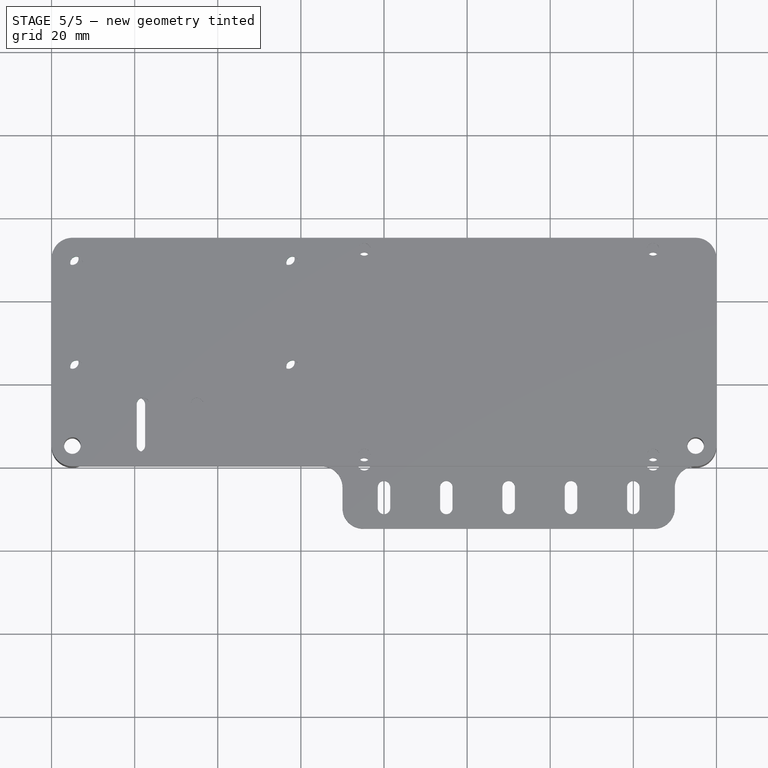
[diagram: stage 5 of 5 — top view after this stage's code; geometry added in this stage tinted green]
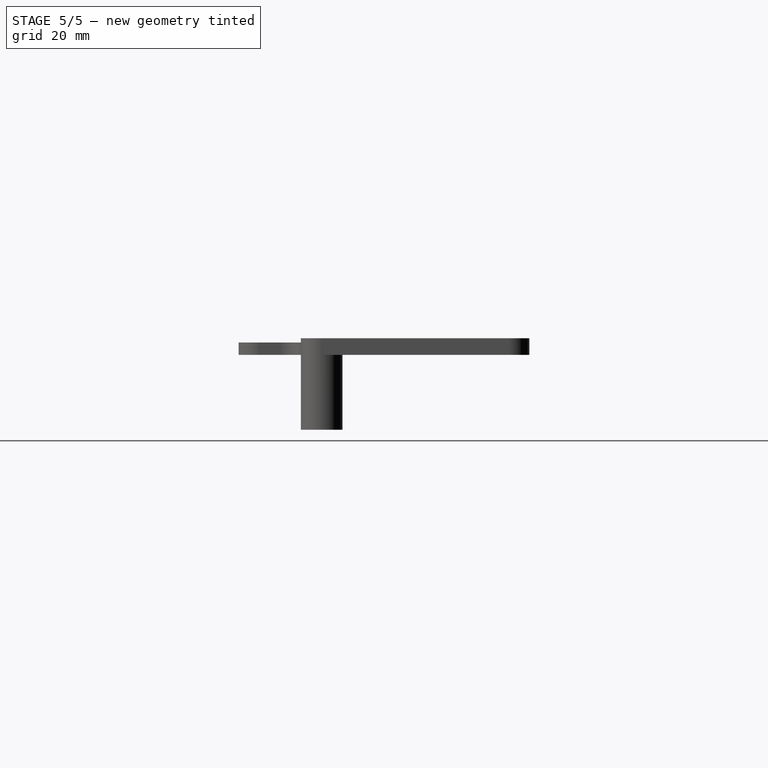
[diagram: stage 5 of 5 — right view after this stage's code; geometry added in this stage tinted green]
FEATURE [Sketcher::SketchObject] Sketch007
  ExternalGeometry = -> [Pad003]
  FullyConstrained = true
  MapMode = 5
  Placement = pos=(0,0,-10) rot=(1,0,0;3.14159rad)
  Support = -> [Pad003]
  sketch-geometry (4):
    g0: Circle CenterX=75 CenterY=-5 CenterZ=0 NormalX=0 NormalY=0 NormalZ=1 AngleXU=0 Radius=5
    g1: Circle CenterX=75 CenterY=-5 CenterZ=0 NormalX=0 NormalY=0 NormalZ=1 AngleXU=0 Radius=4
    g2: Circle CenterX=-75 CenterY=-5 CenterZ=0 NormalX=0 NormalY=0 NormalZ=1 AngleXU=0 Radius=5
    g3: Circle CenterX=-75 CenterY=-5 CenterZ=0 NormalX=0 NormalY=0 NormalZ=1 AngleXU=0 Radius=4
  constraints (8):
    c: Coincident(g0,g-3)
    c: Coincident(g1,g0)
    c: Coincident(g2,g-4)
    c: Coincident(g3,g2)
    c: Equal(g0,g-3)
    c: Equal(g2,g-4)
    c: Equal(g1,g3)
    c: Diameter(g1) = 8
FEATURE [PartDesign::Pad] Pad004  label="Stützenrand"
  BaseFeature = -> Pad003
  Direction = (0,0,-1)
  Length = 3
  Length2 = 10
  Profile = -> Sketch007
  ReferenceAxis = -> Sketch007 [N_Axis]
  Type = 0
FEATURE [PartDesign::Body] Body002  label="ESP"
  Group = -> [Sketch008,Pad005]
  Origin = -> Origin002
  Placement = pos=(-22,24,8) rot=(0,0,1;0rad)
  Tip = -> Pad005
FEATURE [PartDesign::SubShapeBinder] Binder001  label="EspBinder"
  BindCopyOnChange = 0
  BindMode = 0
  ClaimChildren = false
  Context = -> Body [Binder001.]
  Fuse = false
  MakeFace = true
  OffsetFill = false
  OffsetIntersection = false
  OffsetJoinType = 0
  OffsetOpenResult = false
  PartialLoad = false
  Relative = true
  Support = -> [Body002]
  _Version = 2
FEATURE [Sketcher::SketchObject] Sketch009
  ExternalGeometry = -> [Binder001]
  FullyConstrained = true
  MapMode = 5
  Placement = pos=(0,0,4) rot=(0,0,1;0rad)
  Support = -> [Pad004]
  sketch-geometry (4):
    g0: Circle CenterX=-74 CenterY=49 CenterZ=0 NormalX=0 NormalY=0 NormalZ=1 AngleXU=0 Radius=1.5
    g1: Circle CenterX=-22 CenterY=49 CenterZ=0 NormalX=0 NormalY=0 NormalZ=1 AngleXU=0 Radius=1.5
    g2: Circle CenterX=-22 CenterY=24 CenterZ=0 NormalX=0 NormalY=0 NormalZ=1 AngleXU=0 Radius=1.5
    g3: Circle CenterX=-74 CenterY=24 CenterZ=0 NormalX=0 NormalY=0 NormalZ=1 AngleXU=0 Radius=1.5
  constraints (8):
    c: Coincident(g0,g-3)
    c: Coincident(g1,g-4)
    c: Coincident(g2,g-6)
    c: Coincident(g3,g-5)
    c: Equal(g3,g0)
    c: Equal(g0,g1)
    c: Equal(g1,g2)
    c: Equal(g0,g-3)
FEATURE [PartDesign::Hole] Hole001  label="EspLöcher"
  BaseFeature = -> Pad004
  CustomThreadClearance = 0
  Depth = 25
  DepthType = 0
  Diameter = 3
  DrillForDepth = false
  DrillPoint = 1
  DrillPointAngle = 118
  HoleCutCountersinkAngle = 90
  HoleCutCustomValues = false
  HoleCutDepth = 0
  HoleCutDiameter = 6.1
  HoleCutType = 0
  ModelThread = false
  Profile = -> Sketch009
  Tapered = false
  TaperedAngle = 90
  ThreadClass = 0
  ThreadDepth = 25
  ThreadDepthType = 0
  ThreadDirection = 0
  ThreadFit = 0
  ThreadSize = 0
  ThreadType = 0
  Threaded = false
  UseCustomThreadClearance = false
FEATURE [Sketcher::SketchObject] Sketch010
  ExternalGeometry = -> [Hole001]
  FullyConstrained = true
  MapMode = 5
  Placement = pos=(0,0,4) rot=(0,0,1;0rad)
  Support = -> [Hole001]
  sketch-geometry (10):
    g0: ArcOfCircle CenterX=-58 CenterY=15 CenterZ=0 NormalX=0 NormalY=0 NormalZ=1 AngleXU=0 Radius=1.5 StartAngle=0 EndAngle=3.14159
    g1: ArcOfCircle CenterX=-58 CenterY=5 CenterZ=0 NormalX=0 NormalY=0 NormalZ=1 AngleXU=0 Radius=1.5 StartAngle=3.14159 EndAngle=6.28319
    g2: LineSegment StartX=-59.5 StartY=15 StartZ=0 EndX=-59.5 EndY=5 EndZ=0
    g3: LineSegment StartX=-56.5 StartY=5 StartZ=0 EndX=-56.5 EndY=15 EndZ=0
    g4: ArcOfCircle CenterX=-45 CenterY=15 CenterZ=0 NormalX=0 NormalY=0 NormalZ=1 AngleXU=0 Radius=1.5 StartAngle=5e-16 EndAngle=3.14159
    g5: ArcOfCircle CenterX=-45 CenterY=5 CenterZ=0 NormalX=0 NormalY=0 NormalZ=1 AngleXU=0 Radius=1.5 StartAngle=3.14159 EndAngle=6.28319
    g6: LineSegment StartX=-46.5 StartY=15 StartZ=0 EndX=-46.5 EndY=5 EndZ=0
    g7: LineSegment StartX=-43.5 StartY=5 StartZ=0 EndX=-43.5 EndY=15 EndZ=0
    g8: LineSegment StartX=-58 StartY=5 StartZ=0 EndX=-45 EndY=5 EndZ=0
    g9: LineSegment StartX=-58 StartY=5 StartZ=0 EndX=-73 EndY=5 EndZ=0
  constraints (24):
    c: Tangent(g0,g2) = -1.5708
    c: Tangent(g2,g1) = -1.5708
    c: Tangent(g1,g3) = -1.5708
    c: Tangent(g3,g0) = -1.5708
    c: Equal(g0,g1)
    c: Vertical(g2)
    c: Tangent(g4,g6) = -1.5708
    c: Tangent(g6,g5) = -1.5708
    c: Tangent(g5,g7) = -1.5708
    c: Tangent(g7,g4) = -1.5708
    c: Equal(g4,g5)
    c: Vertical(g6)
    c: DistanceY(g1,g0) = 10
    c: Equal(g2,g6)
    c: Coincident(g8,g1)
    c: Coincident(g8,g5)
    c: Horizontal(g8)
    c: Coincident(g9,g1)
    c: Coincident(g9,g-3)
    c: Horizontal(g9)
    c: Diameter(g1) = 3
    c: Equal(g1,g5)
    c: DistanceX(g0,g4) = 10
    c: DistanceX(g9,g1) = 15
FEATURE [PartDesign::Pocket] Pocket  label="KabelbinderLöcher"
  BaseFeature = -> Hole001
  Direction = (0,0,-1)
  Length = 5
  Length2 = 5
  Profile = -> Sketch010
  ReferenceAxis = -> Sketch010 [N_Axis]
  Type = 1
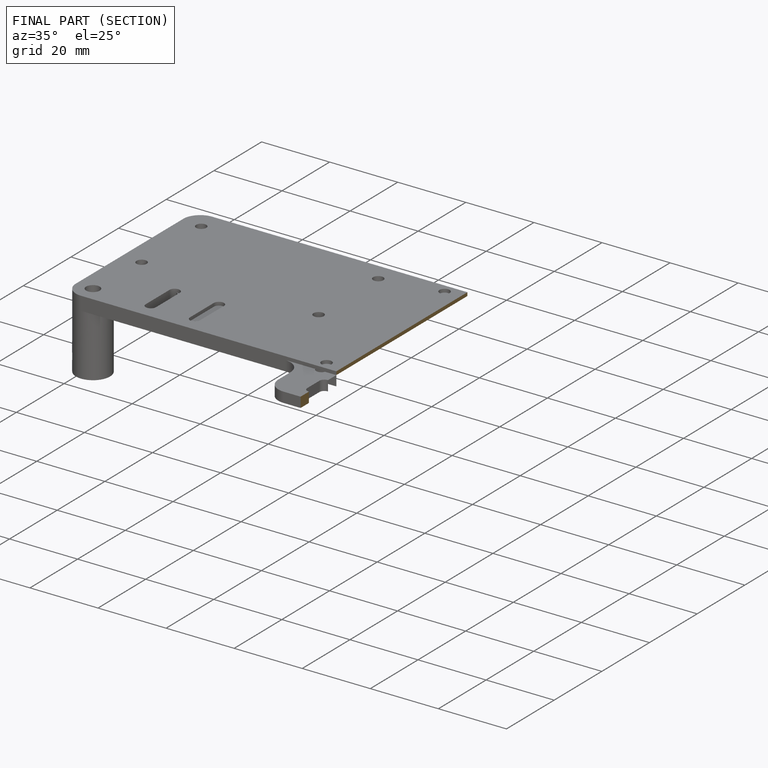
[diagram: finished part — half-section view (interior)]
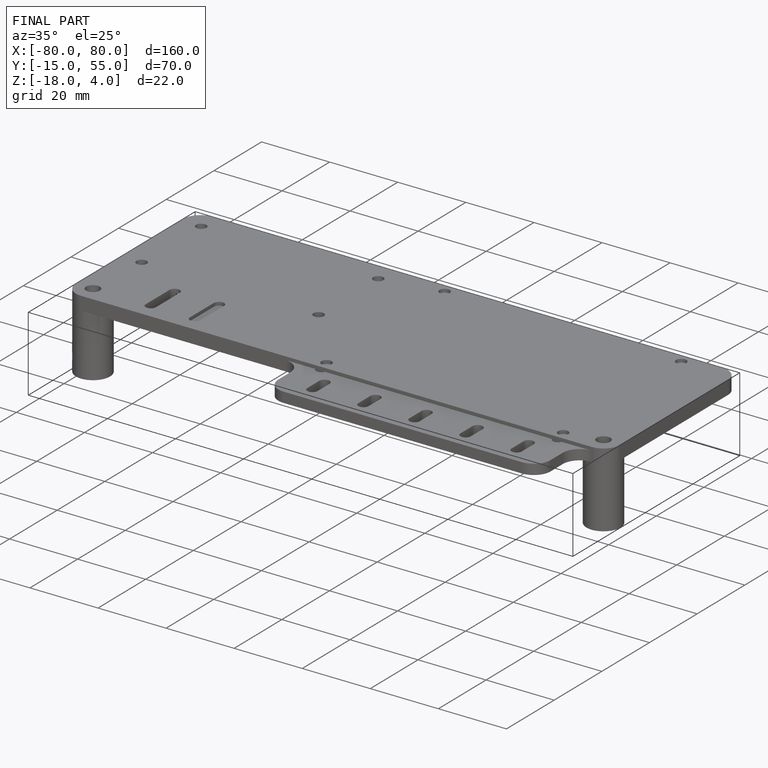
[diagram: finished part — iso view with bounding-box wireframe]
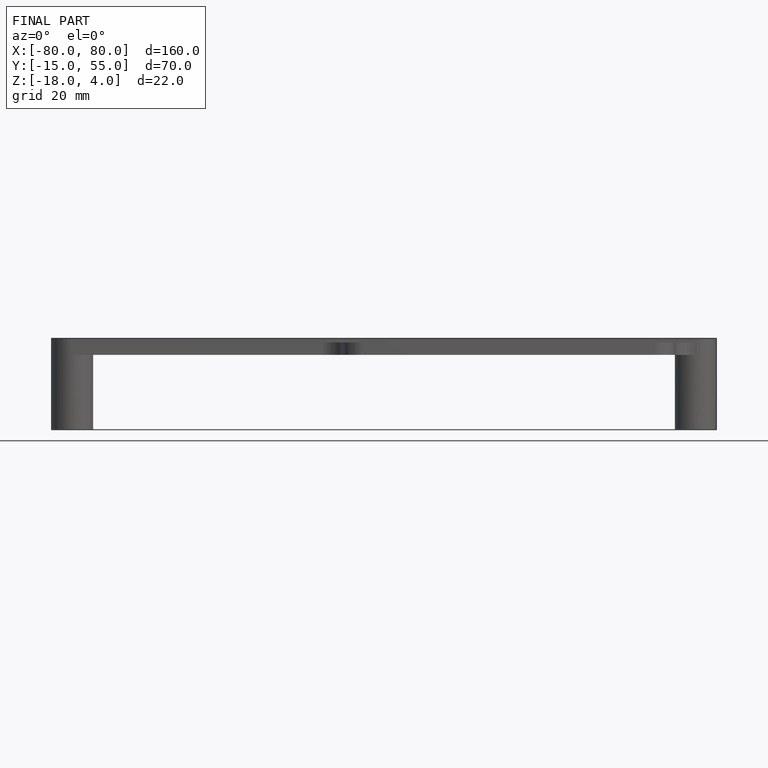
[diagram: finished part — front view with bounding-box wireframe]
